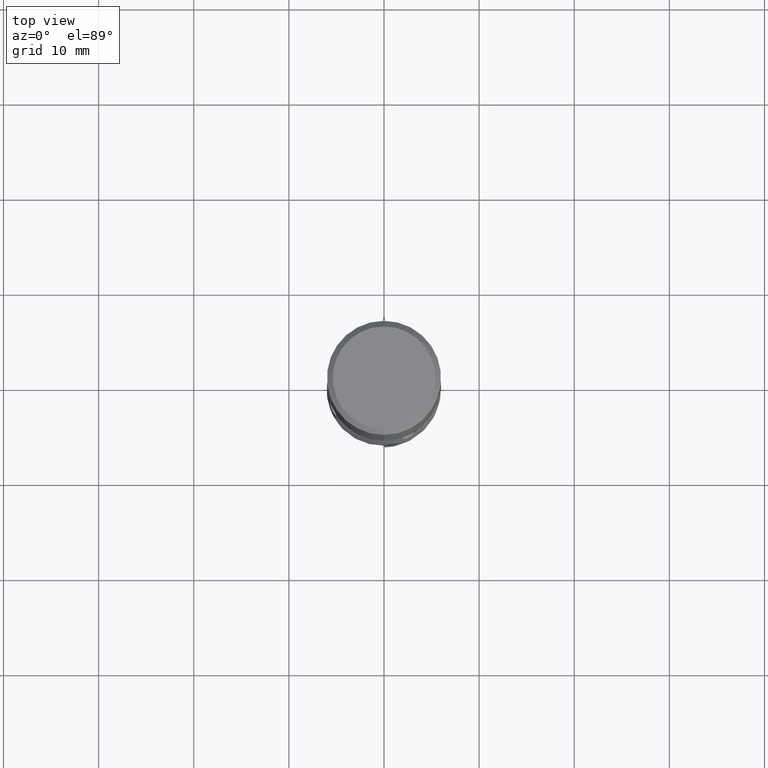
[diagram: clean part render]
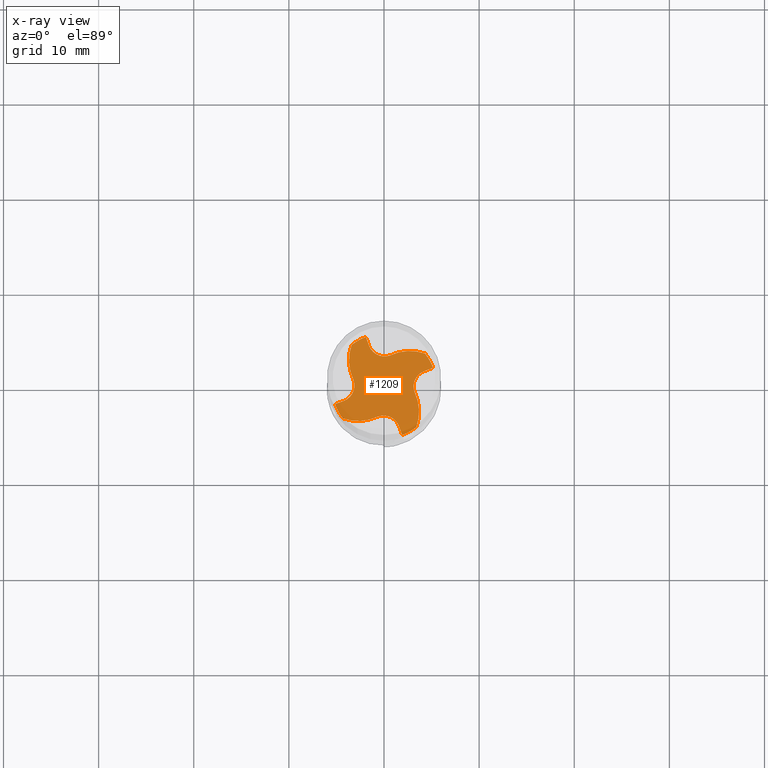
[diagram: x-ray — body ghosted, one internal face saturated and labeled with its STEP entity id]
A machine part, top view, then the same camera in x-ray: the body is ghosted and one INTERNAL B-rep face — a face not visible from any outside direction — is saturated and labeled: STEP entity #1209.
In plain terms, the highlighted planar face has unit normal (0, 0, -1).
Its self-contained STEP definition (entity closure, byte-faithful):
#535=EDGE_CURVE('',#1035,#565,#1493,.T.);
#565=VERTEX_POINT('',#1525);
#613=VERTEX_POINT('',#1578);
#639=EDGE_CURVE('',#871,#929,#1608,.T.);
#685=VERTEX_POINT('',#1656);
#707=VERTEX_POINT('',#1680);
#709=EDGE_CURVE('',#1351,#825,#1682,.T.);
#729=EDGE_CURVE('',#967,#1337,#1703,.T.);
#771=VERTEX_POINT('',#1753);
#781=EDGE_CURVE('',#613,#685,#1763,.T.);
#825=VERTEX_POINT('',#1812);
#839=EDGE_CURVE('',#851,#967,#1827,.T.);
#851=VERTEX_POINT('',#1839);
#871=VERTEX_POINT('',#1861);
#895=EDGE_CURVE('',#897,#851,#1886,.T.);
#897=VERTEX_POINT('',#1888);
#929=VERTEX_POINT('',#1922);
#935=EDGE_CURVE('',#825,#613,#1928,.T.);
#967=VERTEX_POINT('',#1963);
#1005=VERTEX_POINT('',#2003);
#1007=EDGE_CURVE('',#565,#1005,#2005,.T.);
#1023=EDGE_CURVE('',#771,#707,#2022,.T.);
#1035=VERTEX_POINT('',#2036);
#1099=EDGE_CURVE('',#1337,#1407,#2110,.T.);
#1119=EDGE_CURVE('',#707,#897,#2134,.T.);
#1165=EDGE_CURVE('',#1005,#771,#2183,.T.);
#1209=ADVANCED_FACE('',(#2233),#2234,.T.);
#1213=EDGE_CURVE('',#685,#1035,#2239,.T.);
#1217=EDGE_CURVE('',#1407,#871,#2243,.T.);
#1305=EDGE_CURVE('',#929,#1351,#2336,.T.);
#1337=VERTEX_POINT('',#2371);
#1351=VERTEX_POINT('',#2386);
#1407=VERTEX_POINT('',#2446);
#1493=CIRCLE('',#3247,4.77359999999999);
#1525=CARTESIAN_POINT('',(4.32069703443661,3.40309082146079,-50.0000000000019));
#1578=CARTESIAN_POINT('',(-1.90995452340342,5.15766649959367,-50.000000000002));
#1608=LINE('',#3913,#3914);
#1656=CARTESIAN_POINT('',(-1.5679132852421,4.23401380842874,-50.000000000002));
#1680=CARTESIAN_POINT('',(3.21540397389852,-0.648769823678464,-50.000000000002));
#1682=CIRCLE('',#4515,4.77359999999999);
#1703=CIRCLE('',#4829,1.725);
#1753=CARTESIAN_POINT('',(4.23401380842871,1.56791328524207,-50.000000000002));
#1763=LINE('',#5638,#5639);
#1812=CARTESIAN_POINT('',(-3.40309082146235,4.32069703443538,-50.0));
#1827=LINE('',#6444,#6445);
#1839=CARTESIAN_POINT('',(1.90995452340336,-5.15766649959369,-50.0));
#1861=CARTESIAN_POINT('',(-5.15766649959369,-1.90995452340336,-50.0));
#1886=CIRCLE('',#6675,5.49995);
#1888=CARTESIAN_POINT('',(3.40309082146234,-4.32069703443539,-50.0));
#1922=CARTESIAN_POINT('',(-4.23401380842874,-1.56791328524207,-50.000000000002));
#1928=CIRCLE('',#7036,5.49995);
#1963=CARTESIAN_POINT('',(1.56791328524207,-4.23401380842873,-50.000000000002));
#2003=CARTESIAN_POINT('',(5.15766649959369,1.90995452340337,-50.0));
#2005=CIRCLE('',#7735,5.49995);
#2022=CIRCLE('',#7773,1.725);
#2036=CARTESIAN_POINT('',(0.648769823678435,3.21540397389855,-50.0000000000019));
#2110=CIRCLE('',#8204,4.77359999999999);
#2134=CIRCLE('',#8286,4.77359999999999);
#2183=LINE('',#8418,#8419);
#2233=FACE_OUTER_BOUND('',#8914,.T.);
#2234=PLANE('',#8915);
#2239=CIRCLE('',#8921,1.725);
#2243=CIRCLE('',#8930,5.49995);
#2336=CIRCLE('',#9738,1.725);
#2371=CARTESIAN_POINT('',(-0.648769823678464,-3.21540397389853,-50.000000000002));
#2386=CARTESIAN_POINT('',(-3.21540397389855,0.648769823678464,-50.0000000000019));
#2446=CARTESIAN_POINT('',(-4.32069703443538,-3.40309082146235,-50.0));
#3247=AXIS2_PLACEMENT_3D('',#10700,#10701,#10702);
#3913=CARTESIAN_POINT('',(-4.23401380842874,-1.56791328524207,-50.000000000002));
#3914=VECTOR('',#10841,0.999999999999999);
#4515=AXIS2_PLACEMENT_3D('',#10920,#10921,#10922);
#4829=AXIS2_PLACEMENT_3D('',#10929,#10930,#10931);
#5638=CARTESIAN_POINT('',(-1.5679132852421,4.23401380842874,-50.000000000002));
#5639=VECTOR('',#11008,0.999999999999999);
#6444=CARTESIAN_POINT('',(1.56791328524207,-4.23401380842873,-50.000000000002));
#6445=VECTOR('',#11068,0.999999999999999);
#6675=AXIS2_PLACEMENT_3D('',#11119,#11120,#11121);
#7036=AXIS2_PLACEMENT_3D('',#11144,#11145,#11146);
#7735=AXIS2_PLACEMENT_3D('',#11197,#11198,#11199);
#7773=AXIS2_PLACEMENT_3D('',#11210,#11211,#11212);
#8204=AXIS2_PLACEMENT_3D('',#11339,#11340,#11341);
#8286=AXIS2_PLACEMENT_3D('',#11391,#11392,#11393);
#8418=CARTESIAN_POINT('',(4.23401380842871,1.56791328524207,-50.000000000002));
#8419=VECTOR('',#11426,0.999999999999999);
#8914=EDGE_LOOP('',(#11500,#11501,#11502,#11503,#11504,#11505,#11506,#11507,#11508,#11509,#11510,#11511,#11512,#11513,#11514,#11515));
#8915=AXIS2_PLACEMENT_3D('',#11516,#11517,#11518);
#8921=AXIS2_PLACEMENT_3D('',#11527,#11528,#11529);
#8930=AXIS2_PLACEMENT_3D('',#11530,#11531,#11532);
#9738=AXIS2_PLACEMENT_3D('',#11595,#11596,#11597);
#10700=CARTESIAN_POINT('',(2.70961822245673,-1.09042473115382,-50.0000000000019));
#10701=DIRECTION('',(8.99280649946377E-015,-2.22044604925031E-016,-1.0));
#10702=DIRECTION('',(-0.43171786466782,0.902008694706796,-4.08264138357451E-015));
#10841=DIRECTION('',(0.937766070526765,0.347267615778942,3.27515792264421E-015));
#10920=CARTESIAN_POINT('',(1.09042473115382,2.70961822245675,-50.0000000000019));
#10921=DIRECTION('',(2.22044604925031E-016,8.99280649946377E-015,-1.0));
#10922=DIRECTION('',(-0.902008694706796,-0.43171786466782,-4.08264138357451E-015));
#10929=CARTESIAN_POINT('',(-0.0497331864756632,-4.83305044577591,-50.000000000002));
#10930=DIRECTION('',(8.99280649946377E-015,-2.22044604925031E-016,1.0));
#10931=DIRECTION('',(-0.347267615724579,0.937766070546896,3.33113636838796E-015));
#11008=DIRECTION('',(0.347267615778942,-0.937766070526765,3.27515792264421E-015));
#11068=DIRECTION('',(-0.347267615778942,0.937766070526765,3.27515792264421E-015));
#11119=CARTESIAN_POINT('',(0.0,0.0,-50.0));
#11120=DIRECTION('',(0.0,0.0,-1.0));
#11121=DIRECTION('',(0.0,1.0,0.0));
#11144=CARTESIAN_POINT('',(0.0,0.0,-50.0));
#11145=DIRECTION('',(0.0,0.0,-1.0));
#11146=DIRECTION('',(0.0,1.0,0.0));
#11197=CARTESIAN_POINT('',(0.0,0.0,-50.0));
#11198=DIRECTION('',(0.0,0.0,-1.0));
#11199=DIRECTION('',(0.0,1.0,0.0));
#11210=CARTESIAN_POINT('',(4.8330504457759,-0.0497331864756632,-50.000000000002));
#11211=DIRECTION('',(2.22044604925031E-016,8.99280649946377E-015,1.0));
#11212=DIRECTION('',(-0.937766070546896,-0.347267615724579,3.33113636838796E-015));
#11339=CARTESIAN_POINT('',(-2.70961822245675,1.09042473115383,-50.0000000000019));
#11340=DIRECTION('',(-8.99280649946377E-015,2.22044604925031E-016,-1.0));
#11341=DIRECTION('',(0.43171786466782,-0.902008694706796,-4.08264138357451E-015));
#11391=CARTESIAN_POINT('',(-1.09042473115385,-2.70961822245675,-50.0000000000019));
#11392=DIRECTION('',(-2.22044604925031E-016,-8.99280649946377E-015,-1.0));
#11393=DIRECTION('',(0.902008694706796,0.43171786466782,-4.08264138357451E-015));
#11426=DIRECTION('',(-0.937766070526765,-0.347267615778942,3.27515792264421E-015));
#11500=ORIENTED_EDGE('',*,*,#1165,.T.);
#11501=ORIENTED_EDGE('',*,*,#1023,.T.);
#11502=ORIENTED_EDGE('',*,*,#1119,.T.);
#11503=ORIENTED_EDGE('',*,*,#895,.T.);
#11504=ORIENTED_EDGE('',*,*,#839,.T.);
#11505=ORIENTED_EDGE('',*,*,#729,.T.);
#11506=ORIENTED_EDGE('',*,*,#1099,.T.);
#11507=ORIENTED_EDGE('',*,*,#1217,.T.);
#11508=ORIENTED_EDGE('',*,*,#639,.T.);
#11509=ORIENTED_EDGE('',*,*,#1305,.T.);
#11510=ORIENTED_EDGE('',*,*,#709,.T.);
#11511=ORIENTED_EDGE('',*,*,#935,.T.);
#11512=ORIENTED_EDGE('',*,*,#781,.T.);
#11513=ORIENTED_EDGE('',*,*,#1213,.T.);
#11514=ORIENTED_EDGE('',*,*,#535,.T.);
#11515=ORIENTED_EDGE('',*,*,#1007,.T.);
#11516=CARTESIAN_POINT('',(0.0,2.749975,-50.0));
#11517=DIRECTION('',(0.0,0.0,-1.0));
#11518=DIRECTION('',(0.0,1.0,0.0));
#11527=CARTESIAN_POINT('',(0.0497331864756347,4.83305044577592,-50.0000000000019));
#11528=DIRECTION('',(-8.99280649946377E-015,2.22044604925031E-016,1.0));
#11529=DIRECTION('',(0.347267615724579,-0.937766070546896,3.33113636838796E-015));
#11530=CARTESIAN_POINT('',(0.0,0.0,-50.0));
#11531=DIRECTION('',(0.0,0.0,-1.0));
#11532=DIRECTION('',(0.0,1.0,0.0));
#11595=CARTESIAN_POINT('',(-4.83305044577592,0.0497331864756632,-50.0000000000019));
#11596=DIRECTION('',(-2.22044604925031E-016,-8.99280649946377E-015,1.0));
#11597=DIRECTION('',(0.937766070546896,0.347267615724579,3.33113636838796E-015));